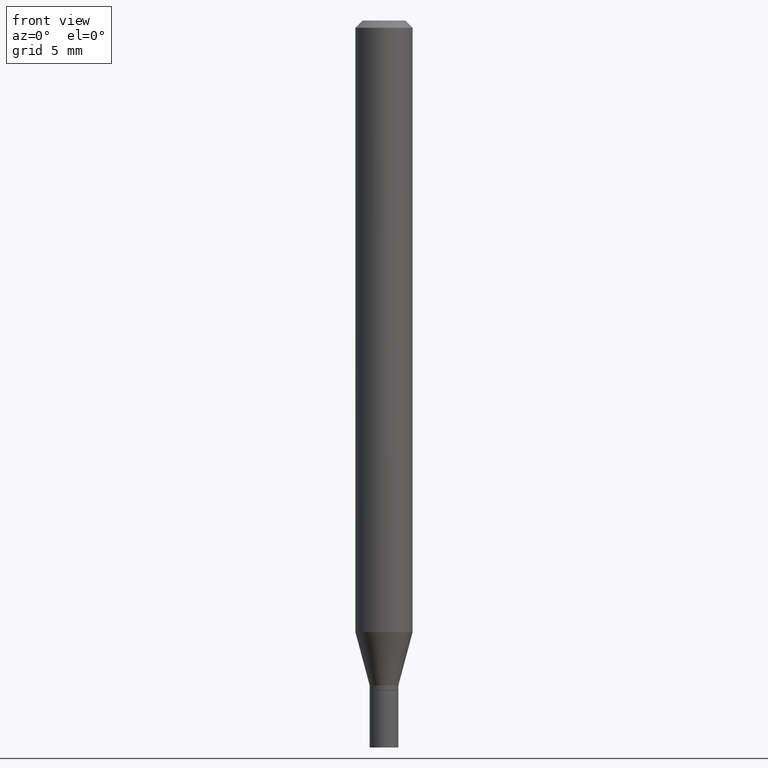
[diagram: clean part render]
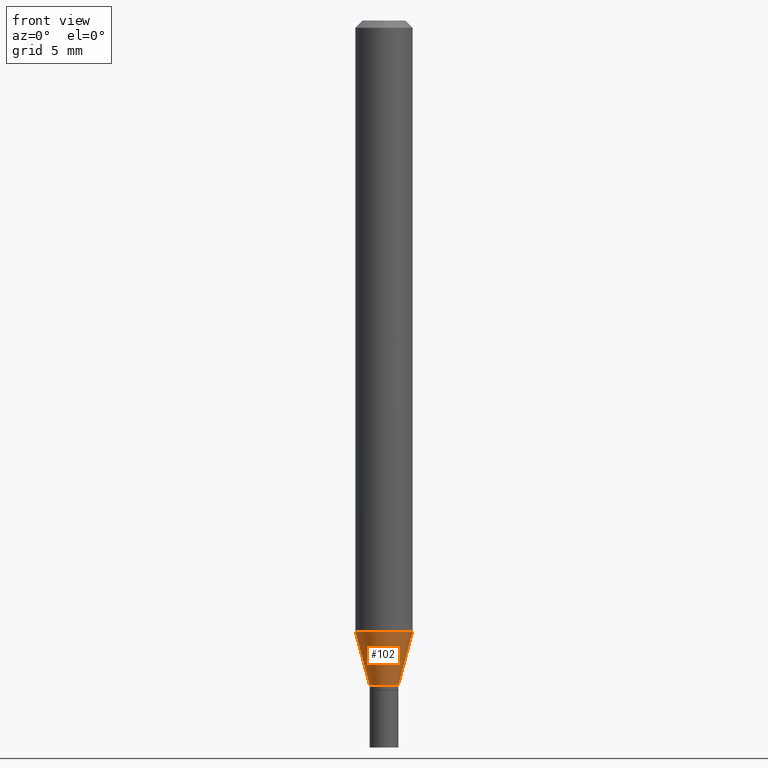
[diagram: same view with one face highlighted and labeled with its STEP entity id]
A machine part, front view. The second image highlights one B-rep face of the part: STEP entity #102.
In plain terms, the highlighted conical surface has half-angle 15 deg.
Its self-contained STEP definition (entity closure, byte-faithful):
#3 = CARTESIAN_POINT ( 'NONE',  ( 3.355183202086007133E-29, -4.790312396892795908E-15, -1.372000000000000108 ) ) ;
#14 = CARTESIAN_POINT ( 'NONE',  ( 3.355183202086007133E-29, -4.790312396892795908E-15, -1.372000000000000108 ) ) ;
#16 = VECTOR ( 'NONE', #38, 39.37007874015748854 ) ;
#18 = DIRECTION ( 'NONE',  ( -2.445468806185136597E-29, 3.491481338843145583E-15, 1.000000000000000000 ) ) ;
#23 = AXIS2_PLACEMENT_3D ( 'NONE', #360, #78, #406 ) ;
#38 = DIRECTION ( 'NONE',  ( 0.2588190451025225713, 1.565188264969612304E-15, 0.9659258262890678681 ) ) ;
#41 = DIRECTION ( 'NONE',  ( -0.2588190451025225713, 5.211531920934557353E-15, 0.9659258262890678681 ) ) ;
#47 = VERTEX_POINT ( 'NONE', #323 ) ;
#78 = DIRECTION ( 'NONE',  ( -2.445468806185136597E-29, 3.491481338843145583E-15, 1.000000000000000000 ) ) ;
#87 = LINE ( 'NONE', #166, #202 ) ;
#91 = ORIENTED_EDGE ( 'NONE', *, *, #184, .F. ) ;
#102 = ADVANCED_FACE ( 'NONE', ( #234 ), #387, .T. ) ;
#105 = AXIS2_PLACEMENT_3D ( 'NONE', #14, #262, #373 ) ;
#107 = DIRECTION ( 'NONE',  ( 1.000000000000000000, -6.982962677686281699E-15, 0.000000000000000000 ) ) ;
#115 = CARTESIAN_POINT ( 'NONE',  ( 0.02954999999999991661, -4.996658944018425519E-15, -1.372000000000000108 ) ) ;
#141 = VERTEX_POINT ( 'NONE', #201 ) ;
#166 = CARTESIAN_POINT ( 'NONE',  ( -0.02954999999999991661, -4.580347018475686551E-15, -1.372000000000000108 ) ) ;
#176 = VERTEX_POINT ( 'NONE', #115 ) ;
#184 = EDGE_CURVE ( 'NONE', #141, #217, #359, .T. ) ;
#187 = AXIS2_PLACEMENT_3D ( 'NONE', #3, #18, #107 ) ;
#201 = CARTESIAN_POINT ( 'NONE',  ( -0.05904999999999999832, -3.986340531794342137E-15, -1.261904501176718707 ) ) ;
#202 = VECTOR ( 'NONE', #41, 39.37007874015748854 ) ;
#212 = CIRCLE ( 'NONE', #105, 0.02954999999999991661 ) ;
#217 = VERTEX_POINT ( 'NONE', #412 ) ;
#218 = EDGE_CURVE ( 'NONE', #47, #141, #87, .T. ) ;
#234 = FACE_OUTER_BOUND ( 'NONE', #455, .T. ) ;
#262 = DIRECTION ( 'NONE',  ( -2.445468806185136597E-29, 3.491481338843145583E-15, 1.000000000000000000 ) ) ;
#272 = LINE ( 'NONE', #381, #16 ) ;
#284 = ORIENTED_EDGE ( 'NONE', *, *, #357, .T. ) ;
#323 = CARTESIAN_POINT ( 'NONE',  ( -0.02954999999999991661, -4.283343775135014344E-15, -1.372000000000000108 ) ) ;
#339 = ORIENTED_EDGE ( 'NONE', *, *, #411, .T. ) ;
#357 = EDGE_CURVE ( 'NONE', #176, #217, #272, .T. ) ;
#359 = CIRCLE ( 'NONE', #23, 0.05904999999999999832 ) ;
#360 = CARTESIAN_POINT ( 'NONE',  ( 3.085948094012280841E-29, -4.405916017260681630E-15, -1.261904501176718707 ) ) ;
#373 = DIRECTION ( 'NONE',  ( 1.000000000000000000, -6.982962677686281699E-15, 0.000000000000000000 ) ) ;
#381 = CARTESIAN_POINT ( 'NONE',  ( 0.02954999999999991661, -4.996658944018425519E-15, -1.372000000000000108 ) ) ;
#387 = CONICAL_SURFACE ( 'NONE', #187, 0.02954999999999991661, 0.2617993877991512952 ) ;
#406 = DIRECTION ( 'NONE',  ( 1.000000000000000000, -6.982962677686273021E-15, 0.000000000000000000 ) ) ;
#411 = EDGE_CURVE ( 'NONE', #47, #176, #212, .T. ) ;
#412 = CARTESIAN_POINT ( 'NONE',  ( 0.05904999999999999832, -4.818259963378055761E-15, -1.261904501176718707 ) ) ;
#445 = ORIENTED_EDGE ( 'NONE', *, *, #218, .F. ) ;
#455 = EDGE_LOOP ( 'NONE', ( #445, #339, #284, #91 ) ) ;